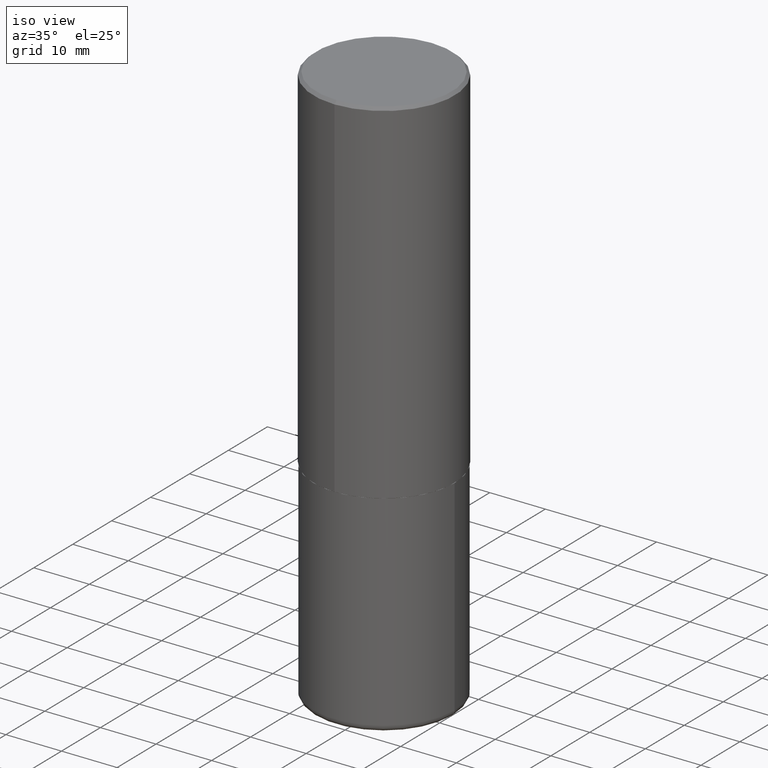
[diagram: clean part render]
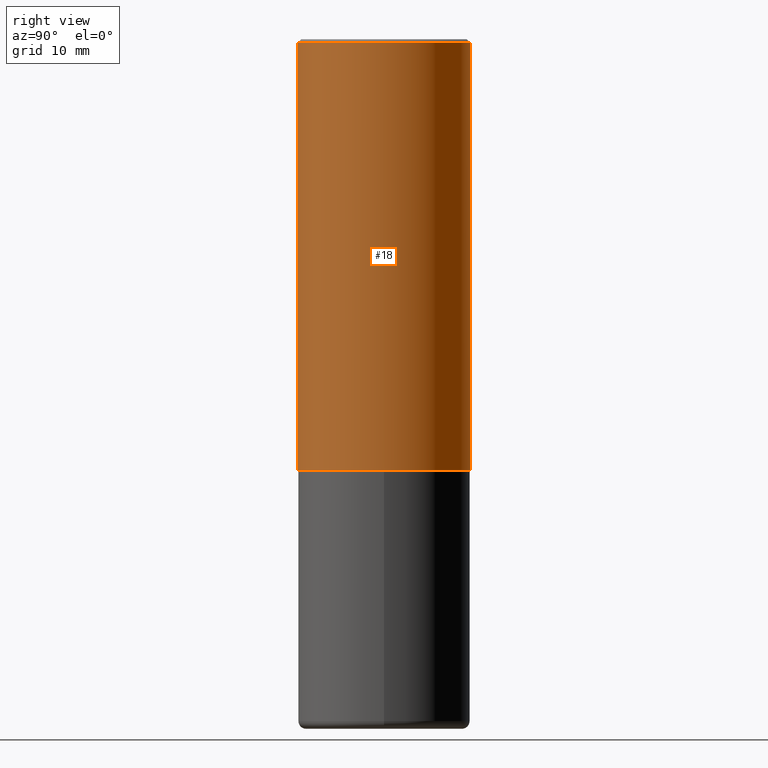
[diagram: tour spotlight — one face highlighted and labeled with its STEP entity id]
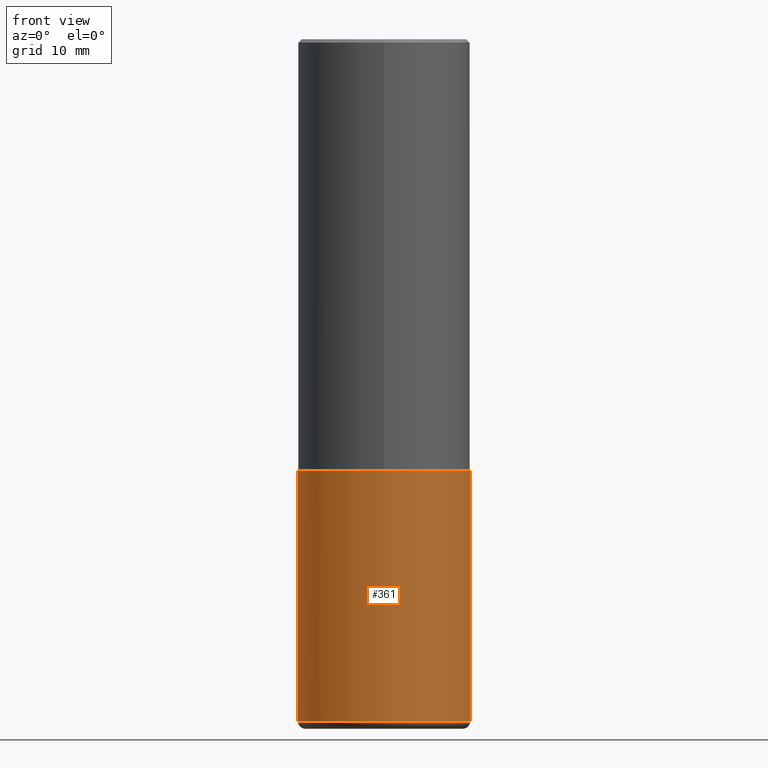
[diagram: tour spotlight — one face highlighted and labeled with its STEP entity id]
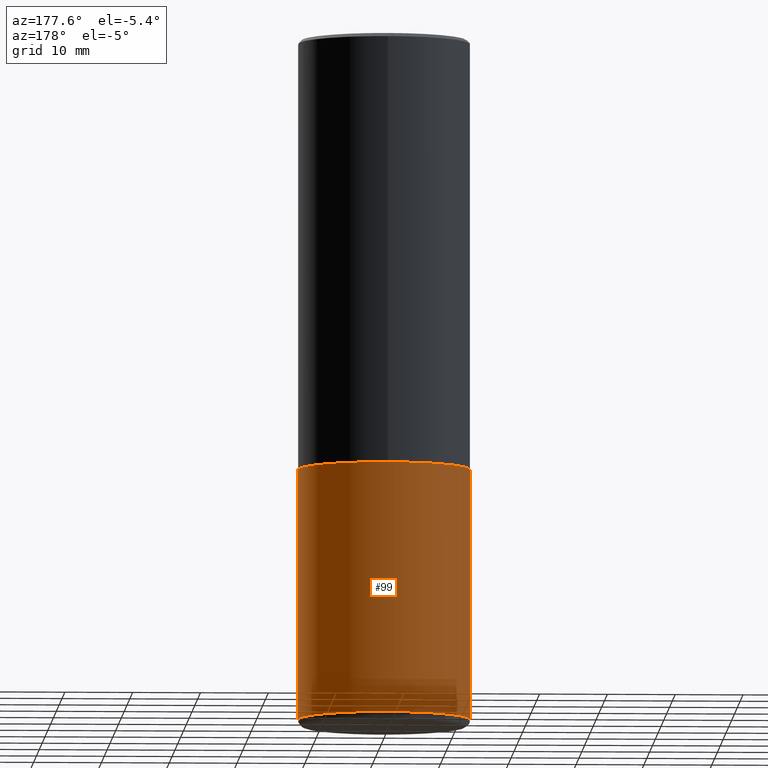
[diagram: tour spotlight — one face highlighted and labeled with its STEP entity id]
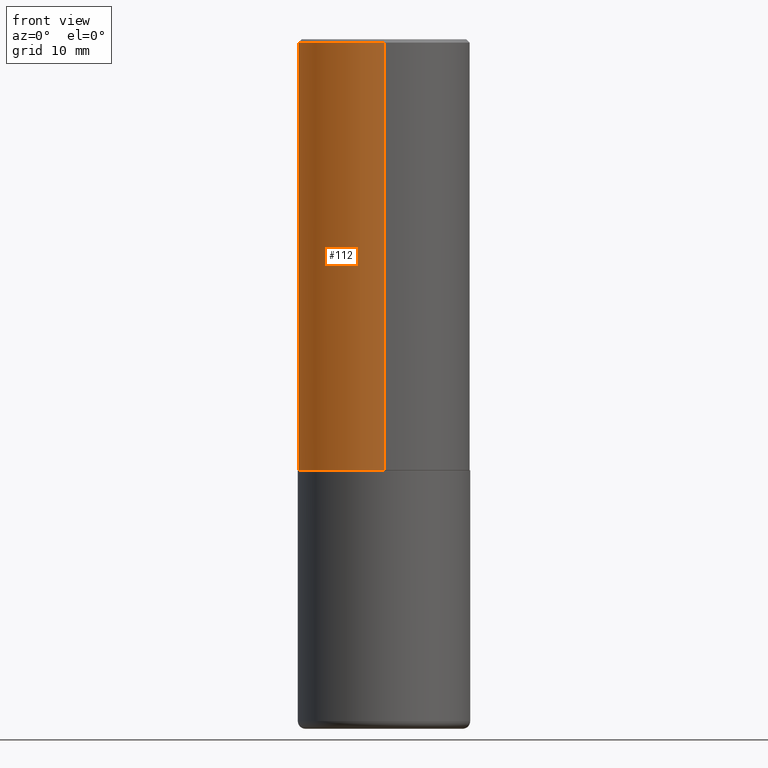
[diagram: tour spotlight — one face highlighted and labeled with its STEP entity id]
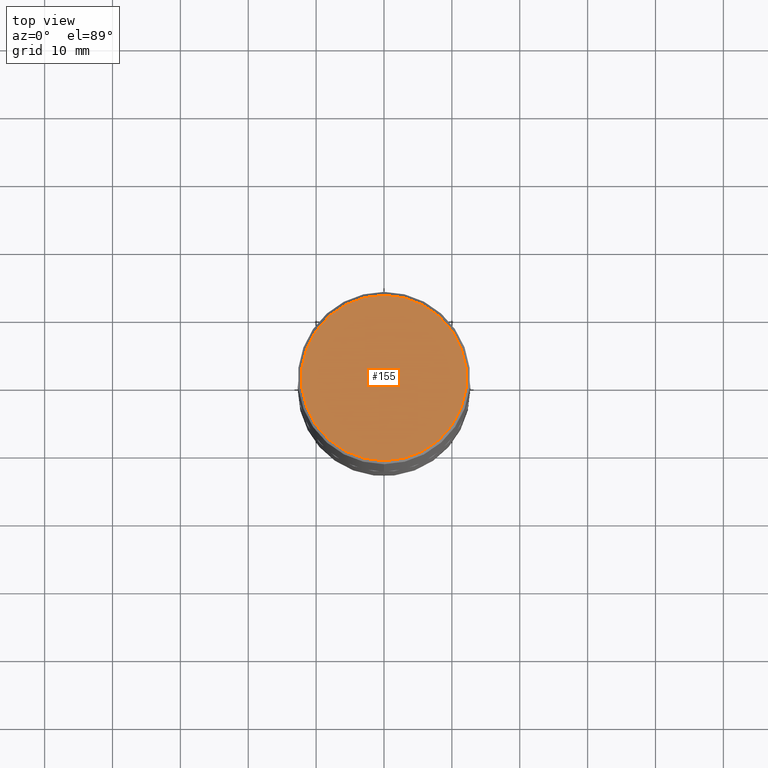
[diagram: tour spotlight — one face highlighted and labeled with its STEP entity id]
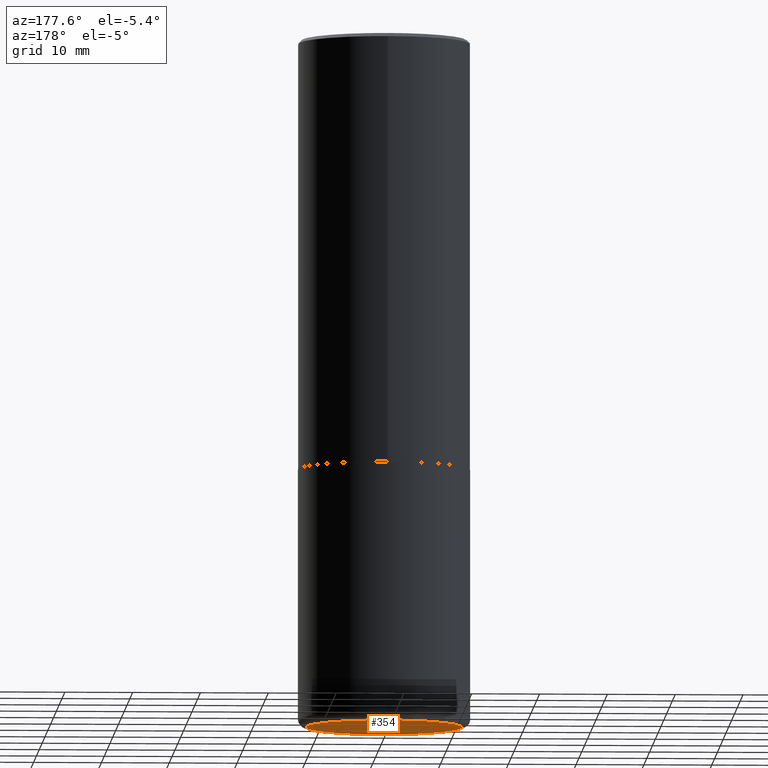
[diagram: tour spotlight — one face highlighted and labeled with its STEP entity id]
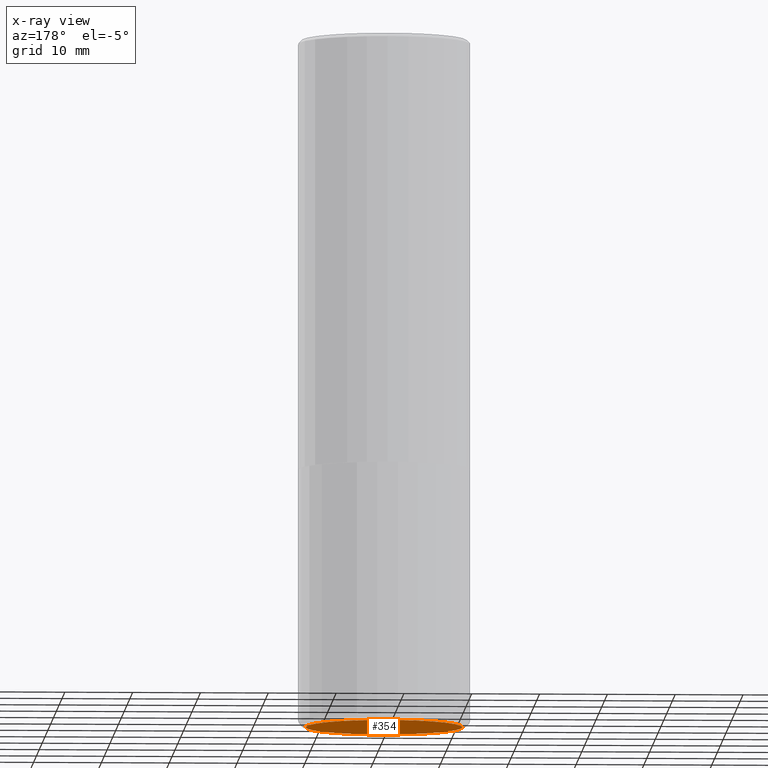
[diagram: x-ray of the same camera — body ghosted, this tour face saturated]
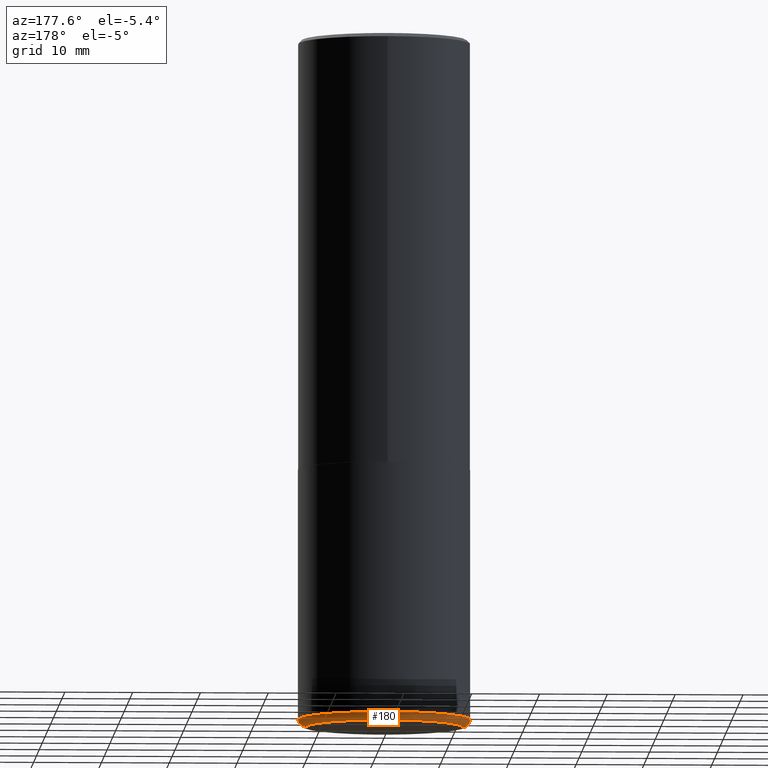
[diagram: tour spotlight — one face highlighted and labeled with its STEP entity id]
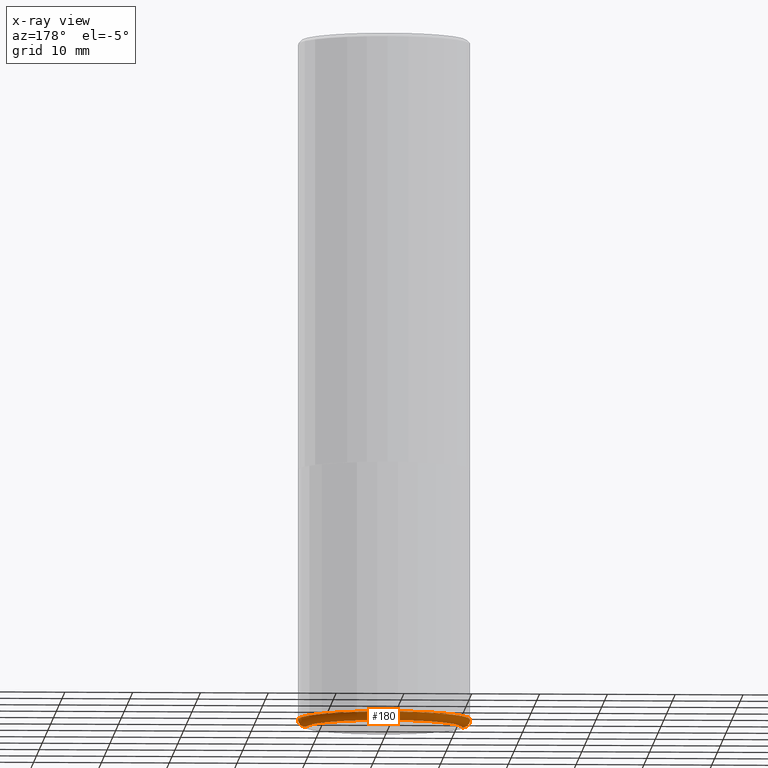
[diagram: x-ray of the same camera — body ghosted, this tour face saturated]
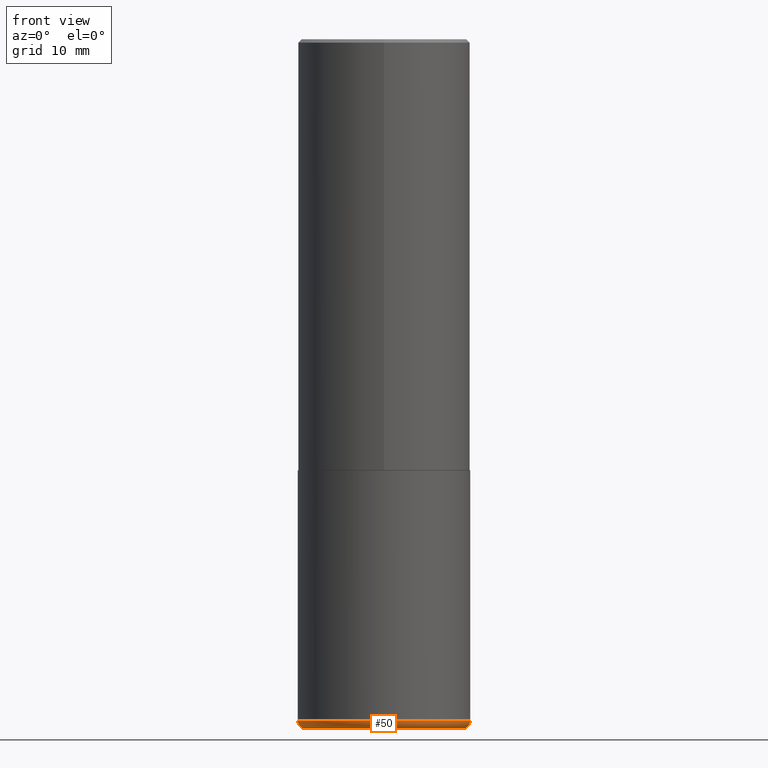
[diagram: tour spotlight — one face highlighted and labeled with its STEP entity id]
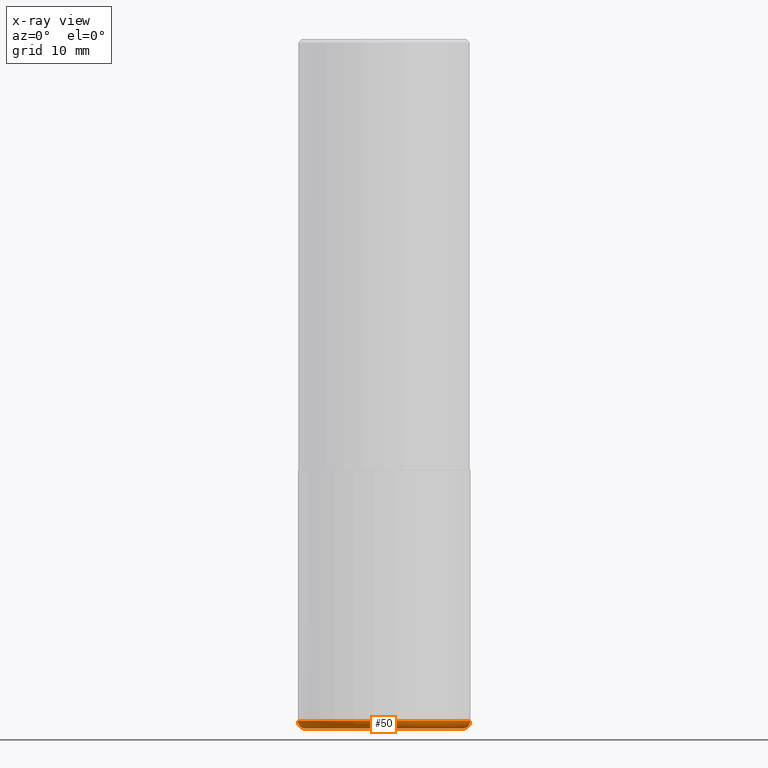
[diagram: x-ray of the same camera — body ghosted, this tour face saturated]
A machine part: a face-by-face anatomy tour. The part has 14 B-rep faces; the first image is the clean iso view, then the 8 largest visible faces are spotlighted one at a time (largest first), each with its STEP entity span.

Face 1 — right view, entity #18. In plain terms, the highlighted cylindrical surface (partial cylindrical patch) has radius 12.7 mm, axis along (-0, 0, 1).
Definition (entity closure, byte-faithful):
#11 = ORIENTED_EDGE ( 'NONE', *, *, #39, .F. ) ;
#18 = ADVANCED_FACE ( 'NONE', ( #242 ), #117, .T. ) ;
#24 = CARTESIAN_POINT ( 'NONE',  ( -3.491481338843073796E-15, -0.5000000000000089928, -2.498999999999998778 ) ) ;
#30 = CIRCLE ( 'NONE', #58, 0.5000000000000002220 ) ;
#36 = ORIENTED_EDGE ( 'NONE', *, *, #262, .T. ) ;
#38 = DIRECTION ( 'NONE',  ( -2.444465131706345255E-29, 3.492918657822378868E-15, 1.000000000000000000 ) ) ;
#39 = EDGE_CURVE ( 'NONE', #272, #231, #398, .T. ) ;
#40 = CARTESIAN_POINT ( 'NONE',  ( 0.000000000000000000, 0.000000000000000000, 0.000000000000000000 ) ) ;
#45 = DIRECTION ( 'NONE',  ( -2.444465131706345255E-29, 3.492918657822378473E-15, 1.000000000000000000 ) ) ;
#58 = AXIS2_PLACEMENT_3D ( 'NONE', #333, #45, #255 ) ;
#77 = DIRECTION ( 'NONE',  ( -6.982962677686265922E-15, -1.000000000000000000, 3.492918657822378473E-15 ) ) ;
#98 = DIRECTION ( 'NONE',  ( -6.982962677686265922E-15, -1.000000000000000000, 3.491643216902136408E-15 ) ) ;
#103 = CARTESIAN_POINT ( 'NONE',  ( -3.491481338843133750E-15, -0.5000000000000001110, 1.746459328911189631E-15 ) ) ;
#106 = ORIENTED_EDGE ( 'NONE', *, *, #235, .F. ) ;
#117 = CYLINDRICAL_SURFACE ( 'NONE', #214, 0.5000000000000001110 ) ;
#146 = CARTESIAN_POINT ( 'NONE',  ( 3.552713678800533273E-15, 0.4999999999999916178, -2.499000000000001886 ) ) ;
#150 = EDGE_CURVE ( 'NONE', #339, #223, #248, .T. ) ;
#152 = AXIS2_PLACEMENT_3D ( 'NONE', #289, #254, #98 ) ;
#182 = DIRECTION ( 'NONE',  ( -2.444465131706345255E-29, 3.492918657822378868E-15, 1.000000000000000000 ) ) ;
#191 = VECTOR ( 'NONE', #38, 39.37007874015748143 ) ;
#206 = CARTESIAN_POINT ( 'NONE',  ( 3.552713678800501718E-15, 0.5000000000000001110, -1.746459328911189631E-15 ) ) ;
#214 = AXIS2_PLACEMENT_3D ( 'NONE', #40, #219, #77 ) ;
#219 = DIRECTION ( 'NONE',  ( -2.444465131706345255E-29, 3.492918657822378473E-15, 1.000000000000000000 ) ) ;
#223 = VERTEX_POINT ( 'NONE', #250 ) ;
#227 = EDGE_LOOP ( 'NONE', ( #36, #228, #106, #11 ) ) ;
#228 = ORIENTED_EDGE ( 'NONE', *, *, #150, .T. ) ;
#231 = VERTEX_POINT ( 'NONE', #316 ) ;
#235 = EDGE_CURVE ( 'NONE', #231, #223, #239, .T. ) ;
#239 = CIRCLE ( 'NONE', #152, 0.5000000000000000000 ) ;
#242 = FACE_OUTER_BOUND ( 'NONE', #227, .T. ) ;
#248 = LINE ( 'NONE', #206, #401 ) ;
#250 = CARTESIAN_POINT ( 'NONE',  ( 3.491481338843133355E-15, 0.4999999999999999445, -0.02000000000000185310 ) ) ;
#254 = DIRECTION ( 'NONE',  ( -2.444465131706345255E-29, 3.492918657822378473E-15, 1.000000000000000000 ) ) ;
#255 = DIRECTION ( 'NONE',  ( -6.982962677686266711E-15, -1.000000000000000000, 3.278217592397114284E-15 ) ) ;
#262 = EDGE_CURVE ( 'NONE', #272, #339, #30, .T. ) ;
#272 = VERTEX_POINT ( 'NONE', #24 ) ;
#289 = CARTESIAN_POINT ( 'NONE',  ( 4.888930263412717169E-31, -6.985837315644793974E-17, -0.02000000000000010797 ) ) ;
#316 = CARTESIAN_POINT ( 'NONE',  ( -3.430248998885764992E-15, -0.5000000000000001110, -0.01999999999999835937 ) ) ;
#333 = CARTESIAN_POINT ( 'NONE',  ( 6.108718364134157248E-29, -8.728803725898125516E-15, -2.499000000000000110 ) ) ;
#339 = VERTEX_POINT ( 'NONE', #146 ) ;
#398 = LINE ( 'NONE', #103, #191 ) ;
#401 = VECTOR ( 'NONE', #182, 39.37007874015748143 ) ;

Face 2 — front view, entity #361. In plain terms, the highlighted cylindrical surface (partial cylindrical patch) has radius 12.7 mm, axis along (-0, 0, 1).
Definition (entity closure, byte-faithful):
#14 = EDGE_CURVE ( 'NONE', #211, #399, #175, .T. ) ;
#34 = EDGE_CURVE ( 'NONE', #266, #66, #329, .T. ) ;
#43 = CYLINDRICAL_SURFACE ( 'NONE', #415, 0.5000000000000000000 ) ;
#47 = FACE_OUTER_BOUND ( 'NONE', #179, .T. ) ;
#66 = VERTEX_POINT ( 'NONE', #283 ) ;
#70 = CARTESIAN_POINT ( 'NONE',  ( -0.5000000000000000000, -7.716042342315751891E-15, -2.500000000000000000 ) ) ;
#87 = DIRECTION ( 'NONE',  ( -2.445468806185136597E-29, 3.491481338843145583E-15, 1.000000000000000000 ) ) ;
#89 = EDGE_CURVE ( 'NONE', #211, #266, #246, .T. ) ;
#127 = CARTESIAN_POINT ( 'NONE',  ( 0.5000000000000000000, -1.730029003396777405E-14, -3.954999999999999627 ) ) ;
#130 = VECTOR ( 'NONE', #199, 39.37007874015748143 ) ;
#132 = CIRCLE ( 'NONE', #352, 0.5000000000000000000 ) ;
#140 = DIRECTION ( 'NONE',  ( 1.000000000000000000, -6.982962677686265133E-15, 0.000000000000000000 ) ) ;
#168 = DIRECTION ( 'NONE',  ( -2.445468806185136877E-29, 3.491481338843145188E-15, 1.000000000000000000 ) ) ;
#174 = CARTESIAN_POINT ( 'NONE',  ( 6.113672015462842613E-29, -8.728703347107864943E-15, -2.500000000000000000 ) ) ;
#175 = LINE ( 'NONE', #365, #130 ) ;
#179 = EDGE_LOOP ( 'NONE', ( #371, #253, #264, #305 ) ) ;
#199 = DIRECTION ( 'NONE',  ( -2.445468806185136877E-29, 3.491481338843145188E-15, 1.000000000000000000 ) ) ;
#207 = DIRECTION ( 'NONE',  ( 1.000000000000000000, -6.982962677686269077E-15, 0.000000000000000000 ) ) ;
#211 = VERTEX_POINT ( 'NONE', #417 ) ;
#213 = CARTESIAN_POINT ( 'NONE',  ( 9.671829128462214433E-29, -1.380880869512464070E-14, -3.954999999999999627 ) ) ;
#244 = DIRECTION ( 'NONE',  ( 1.000000000000000000, -6.982962677686266711E-15, 4.876176775795935793E-29 ) ) ;
#246 = CIRCLE ( 'NONE', #251, 0.5000000000000001110 ) ;
#251 = AXIS2_PLACEMENT_3D ( 'NONE', #213, #87, #140 ) ;
#253 = ORIENTED_EDGE ( 'NONE', *, *, #89, .T. ) ;
#264 = ORIENTED_EDGE ( 'NONE', *, *, #34, .T. ) ;
#266 = VERTEX_POINT ( 'NONE', #127 ) ;
#271 = CARTESIAN_POINT ( 'NONE',  ( 0.000000000000000000, 0.000000000000000000, 0.000000000000000000 ) ) ;
#283 = CARTESIAN_POINT ( 'NONE',  ( 0.5000000000000000000, -1.222018468595099830E-14, -2.500000000000000000 ) ) ;
#302 = DIRECTION ( 'NONE',  ( -2.445468806185136597E-29, 3.491481338843145583E-15, 1.000000000000000000 ) ) ;
#304 = CARTESIAN_POINT ( 'NONE',  ( 0.5000000000000000000, -3.491481338843133355E-15, 2.438088387897967896E-29 ) ) ;
#305 = ORIENTED_EDGE ( 'NONE', *, *, #334, .F. ) ;
#307 = DIRECTION ( 'NONE',  ( -2.445468806185136597E-29, 3.491481338843145583E-15, 1.000000000000000000 ) ) ;
#329 = LINE ( 'NONE', #304, #368 ) ;
#334 = EDGE_CURVE ( 'NONE', #399, #66, #132, .T. ) ;
#352 = AXIS2_PLACEMENT_3D ( 'NONE', #174, #307, #207 ) ;
#361 = ADVANCED_FACE ( 'NONE', ( #47 ), #43, .T. ) ;
#365 = CARTESIAN_POINT ( 'NONE',  ( -0.5000000000000000000, 3.552713678800500929E-15, -2.459467545127452891E-29 ) ) ;
#368 = VECTOR ( 'NONE', #168, 39.37007874015748143 ) ;
#371 = ORIENTED_EDGE ( 'NONE', *, *, #14, .F. ) ;
#399 = VERTEX_POINT ( 'NONE', #70 ) ;
#415 = AXIS2_PLACEMENT_3D ( 'NONE', #271, #302, #244 ) ;
#417 = CARTESIAN_POINT ( 'NONE',  ( -0.5000000000000000000, -1.025609501632413977E-14, -3.954999999999999627 ) ) ;

Face 3 — auxiliary view, entity #99. In plain terms, the highlighted cylindrical surface (partial cylindrical patch) has radius 12.7 mm, axis along (-0, 0, 1).
Definition (entity closure, byte-faithful):
#14 = EDGE_CURVE ( 'NONE', #211, #399, #175, .T. ) ;
#20 = DIRECTION ( 'NONE',  ( 1.000000000000000000, -6.982962677686266711E-15, 4.876176775795935793E-29 ) ) ;
#34 = EDGE_CURVE ( 'NONE', #266, #66, #329, .T. ) ;
#59 = FACE_OUTER_BOUND ( 'NONE', #413, .T. ) ;
#66 = VERTEX_POINT ( 'NONE', #283 ) ;
#70 = CARTESIAN_POINT ( 'NONE',  ( -0.5000000000000000000, -7.716042342315751891E-15, -2.500000000000000000 ) ) ;
#83 = ORIENTED_EDGE ( 'NONE', *, *, #184, .T. ) ;
#86 = AXIS2_PLACEMENT_3D ( 'NONE', #310, #281, #20 ) ;
#99 = ADVANCED_FACE ( 'NONE', ( #59 ), #341, .T. ) ;
#127 = CARTESIAN_POINT ( 'NONE',  ( 0.5000000000000000000, -1.730029003396777405E-14, -3.954999999999999627 ) ) ;
#130 = VECTOR ( 'NONE', #199, 39.37007874015748143 ) ;
#134 = ORIENTED_EDGE ( 'NONE', *, *, #14, .T. ) ;
#153 = CARTESIAN_POINT ( 'NONE',  ( 9.671829128462214433E-29, -1.380880869512464070E-14, -3.954999999999999627 ) ) ;
#168 = DIRECTION ( 'NONE',  ( -2.445468806185136877E-29, 3.491481338843145188E-15, 1.000000000000000000 ) ) ;
#169 = DIRECTION ( 'NONE',  ( 1.000000000000000000, -6.982962677686269077E-15, 0.000000000000000000 ) ) ;
#170 = CIRCLE ( 'NONE', #297, 0.5000000000000000000 ) ;
#175 = LINE ( 'NONE', #365, #130 ) ;
#184 = EDGE_CURVE ( 'NONE', #266, #211, #260, .T. ) ;
#199 = DIRECTION ( 'NONE',  ( -2.445468806185136877E-29, 3.491481338843145188E-15, 1.000000000000000000 ) ) ;
#211 = VERTEX_POINT ( 'NONE', #417 ) ;
#222 = DIRECTION ( 'NONE',  ( 1.000000000000000000, -6.982962677686265133E-15, 0.000000000000000000 ) ) ;
#226 = CARTESIAN_POINT ( 'NONE',  ( 6.113672015462842613E-29, -8.728703347107864943E-15, -2.500000000000000000 ) ) ;
#258 = DIRECTION ( 'NONE',  ( -2.445468806185136597E-29, 3.491481338843145583E-15, 1.000000000000000000 ) ) ;
#260 = CIRCLE ( 'NONE', #407, 0.5000000000000001110 ) ;
#266 = VERTEX_POINT ( 'NONE', #127 ) ;
#275 = EDGE_CURVE ( 'NONE', #66, #399, #170, .T. ) ;
#280 = ORIENTED_EDGE ( 'NONE', *, *, #275, .F. ) ;
#281 = DIRECTION ( 'NONE',  ( -2.445468806185136597E-29, 3.491481338843145583E-15, 1.000000000000000000 ) ) ;
#283 = CARTESIAN_POINT ( 'NONE',  ( 0.5000000000000000000, -1.222018468595099830E-14, -2.500000000000000000 ) ) ;
#297 = AXIS2_PLACEMENT_3D ( 'NONE', #226, #396, #169 ) ;
#304 = CARTESIAN_POINT ( 'NONE',  ( 0.5000000000000000000, -3.491481338843133355E-15, 2.438088387897967896E-29 ) ) ;
#309 = ORIENTED_EDGE ( 'NONE', *, *, #34, .F. ) ;
#310 = CARTESIAN_POINT ( 'NONE',  ( 0.000000000000000000, 0.000000000000000000, 0.000000000000000000 ) ) ;
#329 = LINE ( 'NONE', #304, #368 ) ;
#341 = CYLINDRICAL_SURFACE ( 'NONE', #86, 0.5000000000000000000 ) ;
#365 = CARTESIAN_POINT ( 'NONE',  ( -0.5000000000000000000, 3.552713678800500929E-15, -2.459467545127452891E-29 ) ) ;
#368 = VECTOR ( 'NONE', #168, 39.37007874015748143 ) ;
#396 = DIRECTION ( 'NONE',  ( -2.445468806185136597E-29, 3.491481338843145583E-15, 1.000000000000000000 ) ) ;
#399 = VERTEX_POINT ( 'NONE', #70 ) ;
#407 = AXIS2_PLACEMENT_3D ( 'NONE', #153, #258, #222 ) ;
#413 = EDGE_LOOP ( 'NONE', ( #83, #134, #280, #309 ) ) ;
#417 = CARTESIAN_POINT ( 'NONE',  ( -0.5000000000000000000, -1.025609501632413977E-14, -3.954999999999999627 ) ) ;

Face 4 — front view, entity #112. In plain terms, the highlighted cylindrical surface (partial cylindrical patch) has radius 12.7 mm, axis along (-0, 0, 1).
Definition (entity closure, byte-faithful):
#3 = AXIS2_PLACEMENT_3D ( 'NONE', #379, #186, #357 ) ;
#6 = CARTESIAN_POINT ( 'NONE',  ( 0.000000000000000000, 0.000000000000000000, 0.000000000000000000 ) ) ;
#9 = EDGE_CURVE ( 'NONE', #223, #231, #284, .T. ) ;
#19 = ORIENTED_EDGE ( 'NONE', *, *, #150, .F. ) ;
#24 = CARTESIAN_POINT ( 'NONE',  ( -3.491481338843073796E-15, -0.5000000000000089928, -2.498999999999998778 ) ) ;
#35 = CIRCLE ( 'NONE', #3, 0.5000000000000002220 ) ;
#38 = DIRECTION ( 'NONE',  ( -2.444465131706345255E-29, 3.492918657822378868E-15, 1.000000000000000000 ) ) ;
#39 = EDGE_CURVE ( 'NONE', #272, #231, #398, .T. ) ;
#103 = CARTESIAN_POINT ( 'NONE',  ( -3.491481338843133750E-15, -0.5000000000000001110, 1.746459328911189631E-15 ) ) ;
#112 = ADVANCED_FACE ( 'NONE', ( #217 ), #115, .T. ) ;
#115 = CYLINDRICAL_SURFACE ( 'NONE', #306, 0.5000000000000001110 ) ;
#146 = CARTESIAN_POINT ( 'NONE',  ( 3.552713678800533273E-15, 0.4999999999999916178, -2.499000000000001886 ) ) ;
#150 = EDGE_CURVE ( 'NONE', #339, #223, #248, .T. ) ;
#158 = DIRECTION ( 'NONE',  ( -6.982962677686265922E-15, -1.000000000000000000, 3.492918657822378473E-15 ) ) ;
#162 = EDGE_LOOP ( 'NONE', ( #19, #380, #216, #405 ) ) ;
#172 = DIRECTION ( 'NONE',  ( -6.982962677686265922E-15, -1.000000000000000000, 3.491643216902136408E-15 ) ) ;
#182 = DIRECTION ( 'NONE',  ( -2.444465131706345255E-29, 3.492918657822378868E-15, 1.000000000000000000 ) ) ;
#186 = DIRECTION ( 'NONE',  ( -2.444465131706345255E-29, 3.492918657822378473E-15, 1.000000000000000000 ) ) ;
#191 = VECTOR ( 'NONE', #38, 39.37007874015748143 ) ;
#206 = CARTESIAN_POINT ( 'NONE',  ( 3.552713678800501718E-15, 0.5000000000000001110, -1.746459328911189631E-15 ) ) ;
#216 = ORIENTED_EDGE ( 'NONE', *, *, #39, .T. ) ;
#217 = FACE_OUTER_BOUND ( 'NONE', #162, .T. ) ;
#223 = VERTEX_POINT ( 'NONE', #250 ) ;
#231 = VERTEX_POINT ( 'NONE', #316 ) ;
#248 = LINE ( 'NONE', #206, #401 ) ;
#250 = CARTESIAN_POINT ( 'NONE',  ( 3.491481338843133355E-15, 0.4999999999999999445, -0.02000000000000185310 ) ) ;
#267 = EDGE_CURVE ( 'NONE', #339, #272, #35, .T. ) ;
#272 = VERTEX_POINT ( 'NONE', #24 ) ;
#276 = CARTESIAN_POINT ( 'NONE',  ( 4.888930263412717169E-31, -6.985837315644793974E-17, -0.02000000000000010797 ) ) ;
#284 = CIRCLE ( 'NONE', #406, 0.5000000000000000000 ) ;
#296 = DIRECTION ( 'NONE',  ( -2.444465131706345255E-29, 3.492918657822378473E-15, 1.000000000000000000 ) ) ;
#306 = AXIS2_PLACEMENT_3D ( 'NONE', #6, #296, #158 ) ;
#316 = CARTESIAN_POINT ( 'NONE',  ( -3.430248998885764992E-15, -0.5000000000000001110, -0.01999999999999835937 ) ) ;
#339 = VERTEX_POINT ( 'NONE', #146 ) ;
#357 = DIRECTION ( 'NONE',  ( -6.982962677686266711E-15, -1.000000000000000000, 3.278217592397114284E-15 ) ) ;
#379 = CARTESIAN_POINT ( 'NONE',  ( 6.108718364134157248E-29, -8.728803725898125516E-15, -2.499000000000000110 ) ) ;
#380 = ORIENTED_EDGE ( 'NONE', *, *, #267, .T. ) ;
#398 = LINE ( 'NONE', #103, #191 ) ;
#401 = VECTOR ( 'NONE', #182, 39.37007874015748143 ) ;
#405 = ORIENTED_EDGE ( 'NONE', *, *, #9, .F. ) ;
#406 = AXIS2_PLACEMENT_3D ( 'NONE', #276, #410, #172 ) ;
#410 = DIRECTION ( 'NONE',  ( -2.444465131706345255E-29, 3.492918657822378473E-15, 1.000000000000000000 ) ) ;

Face 5 — top view, entity #155. In plain terms, the highlighted planar face has unit normal (0, -0, -1).
Definition (entity closure, byte-faithful):
#7 = AXIS2_PLACEMENT_3D ( 'NONE', #351, #356, #61 ) ;
#12 = VERTEX_POINT ( 'NONE', #414 ) ;
#27 = VERTEX_POINT ( 'NONE', #46 ) ;
#42 = AXIS2_PLACEMENT_3D ( 'NONE', #312, #49, #278 ) ;
#46 = CARTESIAN_POINT ( 'NONE',  ( -3.361644018908049661E-15, -0.4799999999999998157, 1.801077731077684661E-15 ) ) ;
#49 = DIRECTION ( 'NONE',  ( 2.444465131706344694E-29, -3.492918657822378868E-15, -1.000000000000000000 ) ) ;
#61 = DIRECTION ( 'NONE',  ( -6.982962677686265922E-15, -1.000000000000000000, 3.492918657822378473E-15 ) ) ;
#82 = FACE_OUTER_BOUND ( 'NONE', #208, .T. ) ;
#100 = DIRECTION ( 'NONE',  ( -6.982962677686265922E-15, -1.000000000000000000, 3.492918657822378473E-15 ) ) ;
#121 = EDGE_CURVE ( 'NONE', #27, #12, #358, .T. ) ;
#155 = ADVANCED_FACE ( 'NONE', ( #82 ), #209, .F. ) ;
#178 = AXIS2_PLACEMENT_3D ( 'NONE', #293, #383, #100 ) ;
#203 = CIRCLE ( 'NONE', #178, 0.4799999999999998157 ) ;
#208 = EDGE_LOOP ( 'NONE', ( #332, #363 ) ) ;
#209 = PLANE ( 'NONE',  #42 ) ;
#212 = EDGE_CURVE ( 'NONE', #12, #27, #203, .T. ) ;
#278 = DIRECTION ( 'NONE',  ( 6.982962677686265922E-15, 1.000000000000000000, -3.492918657822378868E-15 ) ) ;
#293 = CARTESIAN_POINT ( 'NONE',  ( -3.042791369841808055E-45, 4.347872509910743958E-31, 1.244767753229437217E-16 ) ) ;
#312 = CARTESIAN_POINT ( 'NONE',  ( 3.351822085289406364E-15, 0.4799999999999998157, -1.614362568093269153E-15 ) ) ;
#332 = ORIENTED_EDGE ( 'NONE', *, *, #212, .T. ) ;
#351 = CARTESIAN_POINT ( 'NONE',  ( -3.042791369841808055E-45, 4.347872509910743958E-31, 1.244767753229437217E-16 ) ) ;
#356 = DIRECTION ( 'NONE',  ( -2.444465131706345255E-29, 3.492918657822378473E-15, 1.000000000000000000 ) ) ;
#358 = CIRCLE ( 'NONE', #7, 0.4799999999999998157 ) ;
#363 = ORIENTED_EDGE ( 'NONE', *, *, #121, .T. ) ;
#383 = DIRECTION ( 'NONE',  ( -2.444465131706345255E-29, 3.492918657822378473E-15, 1.000000000000000000 ) ) ;
#414 = CARTESIAN_POINT ( 'NONE',  ( 3.421651712066270057E-15, 0.4799999999999998157, -1.552124180431797316E-15 ) ) ;

Face 6 — auxiliary view, entity #354. An x-ray twin of the same camera follows (body ghosted, this face saturated) — the face is partly hidden behind the body. In plain terms, the highlighted planar face has unit normal (0, -0, -1).
Definition (entity closure, byte-faithful):
#78 = PLANE ( 'NONE',  #308 ) ;
#90 = VERTEX_POINT ( 'NONE', #344 ) ;
#97 = DIRECTION ( 'NONE',  ( -2.445468806185136597E-29, 3.491481338843145583E-15, 1.000000000000000000 ) ) ;
#124 = EDGE_CURVE ( 'NONE', #236, #90, #177, .T. ) ;
#135 = CIRCLE ( 'NONE', #285, 0.4550000000000000155 ) ;
#137 = CARTESIAN_POINT ( 'NONE',  ( 1.313596622797037674E-28, -9.162676135743107690E-15, -4.000000000000000000 ) ) ;
#154 = CARTESIAN_POINT ( 'NONE',  ( 9.781875224740545266E-29, -1.396592535537258075E-14, -3.999999999999999556 ) ) ;
#156 = ORIENTED_EDGE ( 'NONE', *, *, #163, .F. ) ;
#163 = EDGE_CURVE ( 'NONE', #90, #236, #135, .T. ) ;
#177 = CIRCLE ( 'NONE', #314, 0.4550000000000000155 ) ;
#236 = VERTEX_POINT ( 'NONE', #392 ) ;
#285 = AXIS2_PLACEMENT_3D ( 'NONE', #411, #373, #340 ) ;
#287 = DIRECTION ( 'NONE',  ( 1.000000000000000000, -6.982962677686265922E-15, 0.000000000000000000 ) ) ;
#295 = EDGE_LOOP ( 'NONE', ( #303, #156 ) ) ;
#303 = ORIENTED_EDGE ( 'NONE', *, *, #124, .F. ) ;
#308 = AXIS2_PLACEMENT_3D ( 'NONE', #137, #335, #404 ) ;
#314 = AXIS2_PLACEMENT_3D ( 'NONE', #154, #97, #287 ) ;
#335 = DIRECTION ( 'NONE',  ( 2.438088387897960049E-29, -3.491481338843145188E-15, -1.000000000000000000 ) ) ;
#340 = DIRECTION ( 'NONE',  ( 1.000000000000000000, -6.982962677686265922E-15, 0.000000000000000000 ) ) ;
#344 = CARTESIAN_POINT ( 'NONE',  ( -0.4550000000000000155, -1.049452546199413209E-14, -3.999999999999999556 ) ) ;
#354 = ADVANCED_FACE ( 'NONE', ( #412 ), #78, .T. ) ;
#373 = DIRECTION ( 'NONE',  ( -2.445468806185136597E-29, 3.491481338843145583E-15, 1.000000000000000000 ) ) ;
#392 = CARTESIAN_POINT ( 'NONE',  ( 0.4550000000000000155, -1.714317337371983084E-14, -3.999999999999999556 ) ) ;
#404 = DIRECTION ( 'NONE',  ( -1.000000000000000000, 6.982962677686265922E-15, -4.876176775795935793E-29 ) ) ;
#411 = CARTESIAN_POINT ( 'NONE',  ( 9.781875224740545266E-29, -1.396592535537258075E-14, -3.999999999999999556 ) ) ;
#412 = FACE_OUTER_BOUND ( 'NONE', #295, .T. ) ;

Face 7 — auxiliary view, entity #180. An x-ray twin of the same camera follows (body ghosted, this face saturated) — the face is partly hidden behind the body. In plain terms, the highlighted toroidal blend (fillet) surface has major radius 11.557 mm and minor (blend) radius 1.143 mm.
Definition (entity closure, byte-faithful):
#17 = AXIS2_PLACEMENT_3D ( 'NONE', #418, #123, #389 ) ;
#31 = DIRECTION ( 'NONE',  ( -2.445468806185136597E-29, 3.491481338843145583E-15, 1.000000000000000000 ) ) ;
#41 = DIRECTION ( 'NONE',  ( -6.982962677686266711E-15, -1.000000000000000000, 3.491481338843145583E-15 ) ) ;
#44 = ORIENTED_EDGE ( 'NONE', *, *, #124, .T. ) ;
#57 = FACE_OUTER_BOUND ( 'NONE', #311, .T. ) ;
#67 = DIRECTION ( 'NONE',  ( 1.000000000000000000, -6.982962677686246200E-15, 0.000000000000000000 ) ) ;
#90 = VERTEX_POINT ( 'NONE', #344 ) ;
#96 = CIRCLE ( 'NONE', #215, 0.04499999999999985956 ) ;
#97 = DIRECTION ( 'NONE',  ( -2.445468806185136597E-29, 3.491481338843145583E-15, 1.000000000000000000 ) ) ;
#107 = CARTESIAN_POINT ( 'NONE',  ( 0.4550000000000000155, -1.698605671347189079E-14, -3.954999999999999627 ) ) ;
#120 = AXIS2_PLACEMENT_3D ( 'NONE', #183, #31, #388 ) ;
#123 = DIRECTION ( 'NONE',  ( 7.105427357601001859E-15, 1.000000000000000000, -3.491481338843145583E-15 ) ) ;
#124 = EDGE_CURVE ( 'NONE', #236, #90, #177, .T. ) ;
#127 = CARTESIAN_POINT ( 'NONE',  ( 0.5000000000000000000, -1.730029003396777405E-14, -3.954999999999999627 ) ) ;
#133 = EDGE_CURVE ( 'NONE', #90, #211, #395, .T. ) ;
#144 = ORIENTED_EDGE ( 'NONE', *, *, #184, .F. ) ;
#153 = CARTESIAN_POINT ( 'NONE',  ( 9.671829128462214433E-29, -1.380880869512464070E-14, -3.954999999999999627 ) ) ;
#154 = CARTESIAN_POINT ( 'NONE',  ( 9.781875224740545266E-29, -1.396592535537258075E-14, -3.999999999999999556 ) ) ;
#177 = CIRCLE ( 'NONE', #314, 0.4550000000000000155 ) ;
#180 = ADVANCED_FACE ( 'NONE', ( #57 ), #360, .T. ) ;
#183 = CARTESIAN_POINT ( 'NONE',  ( 9.671829128462214433E-29, -1.380880869512464070E-14, -3.954999999999999627 ) ) ;
#184 = EDGE_CURVE ( 'NONE', #266, #211, #260, .T. ) ;
#197 = ORIENTED_EDGE ( 'NONE', *, *, #243, .F. ) ;
#211 = VERTEX_POINT ( 'NONE', #417 ) ;
#215 = AXIS2_PLACEMENT_3D ( 'NONE', #107, #41, #67 ) ;
#222 = DIRECTION ( 'NONE',  ( 1.000000000000000000, -6.982962677686265133E-15, 0.000000000000000000 ) ) ;
#236 = VERTEX_POINT ( 'NONE', #392 ) ;
#243 = EDGE_CURVE ( 'NONE', #236, #266, #96, .T. ) ;
#258 = DIRECTION ( 'NONE',  ( -2.445468806185136597E-29, 3.491481338843145583E-15, 1.000000000000000000 ) ) ;
#260 = CIRCLE ( 'NONE', #407, 0.5000000000000001110 ) ;
#266 = VERTEX_POINT ( 'NONE', #127 ) ;
#287 = DIRECTION ( 'NONE',  ( 1.000000000000000000, -6.982962677686265922E-15, 0.000000000000000000 ) ) ;
#311 = EDGE_LOOP ( 'NONE', ( #44, #343, #144, #197 ) ) ;
#314 = AXIS2_PLACEMENT_3D ( 'NONE', #154, #97, #287 ) ;
#343 = ORIENTED_EDGE ( 'NONE', *, *, #133, .T. ) ;
#344 = CARTESIAN_POINT ( 'NONE',  ( -0.4550000000000000155, -1.049452546199413209E-14, -3.999999999999999556 ) ) ;
#360 = TOROIDAL_SURFACE ( 'NONE', #120, 0.4550000000000000155, 0.04499999999999985956 ) ;
#388 = DIRECTION ( 'NONE',  ( 1.000000000000000000, -6.982962677686269077E-15, 4.883557194083114022E-29 ) ) ;
#389 = DIRECTION ( 'NONE',  ( -1.000000000000000000, 7.105427357601012903E-15, 0.000000000000000000 ) ) ;
#392 = CARTESIAN_POINT ( 'NONE',  ( 0.4550000000000000155, -1.714317337371983084E-14, -3.999999999999999556 ) ) ;
#395 = CIRCLE ( 'NONE', #17, 0.04499999999999985956 ) ;
#407 = AXIS2_PLACEMENT_3D ( 'NONE', #153, #258, #222 ) ;
#417 = CARTESIAN_POINT ( 'NONE',  ( -0.5000000000000000000, -1.025609501632413977E-14, -3.954999999999999627 ) ) ;
#418 = CARTESIAN_POINT ( 'NONE',  ( -0.4550000000000000155, -1.057583924741618435E-14, -3.954999999999999627 ) ) ;

Face 8 — front view, entity #50. An x-ray twin of the same camera follows (body ghosted, this face saturated) — the face is partly hidden behind the body. In plain terms, the highlighted toroidal blend (fillet) surface has major radius 11.557 mm and minor (blend) radius 1.143 mm.
Definition (entity closure, byte-faithful):
#16 = ORIENTED_EDGE ( 'NONE', *, *, #89, .F. ) ;
#17 = AXIS2_PLACEMENT_3D ( 'NONE', #418, #123, #389 ) ;
#41 = DIRECTION ( 'NONE',  ( -6.982962677686266711E-15, -1.000000000000000000, 3.491481338843145583E-15 ) ) ;
#50 = ADVANCED_FACE ( 'NONE', ( #229 ), #394, .T. ) ;
#67 = DIRECTION ( 'NONE',  ( 1.000000000000000000, -6.982962677686246200E-15, 0.000000000000000000 ) ) ;
#72 = DIRECTION ( 'NONE',  ( -2.445468806185136597E-29, 3.491481338843145583E-15, 1.000000000000000000 ) ) ;
#87 = DIRECTION ( 'NONE',  ( -2.445468806185136597E-29, 3.491481338843145583E-15, 1.000000000000000000 ) ) ;
#89 = EDGE_CURVE ( 'NONE', #211, #266, #246, .T. ) ;
#90 = VERTEX_POINT ( 'NONE', #344 ) ;
#96 = CIRCLE ( 'NONE', #215, 0.04499999999999985956 ) ;
#107 = CARTESIAN_POINT ( 'NONE',  ( 0.4550000000000000155, -1.698605671347189079E-14, -3.954999999999999627 ) ) ;
#110 = CARTESIAN_POINT ( 'NONE',  ( 9.671829128462214433E-29, -1.380880869512464070E-14, -3.954999999999999627 ) ) ;
#123 = DIRECTION ( 'NONE',  ( 7.105427357601001859E-15, 1.000000000000000000, -3.491481338843145583E-15 ) ) ;
#127 = CARTESIAN_POINT ( 'NONE',  ( 0.5000000000000000000, -1.730029003396777405E-14, -3.954999999999999627 ) ) ;
#133 = EDGE_CURVE ( 'NONE', #90, #211, #395, .T. ) ;
#135 = CIRCLE ( 'NONE', #285, 0.4550000000000000155 ) ;
#140 = DIRECTION ( 'NONE',  ( 1.000000000000000000, -6.982962677686265133E-15, 0.000000000000000000 ) ) ;
#163 = EDGE_CURVE ( 'NONE', #90, #236, #135, .T. ) ;
#167 = ORIENTED_EDGE ( 'NONE', *, *, #243, .T. ) ;
#200 = DIRECTION ( 'NONE',  ( 1.000000000000000000, -6.982962677686269077E-15, 4.883557194083114022E-29 ) ) ;
#202 = AXIS2_PLACEMENT_3D ( 'NONE', #110, #72, #200 ) ;
#211 = VERTEX_POINT ( 'NONE', #417 ) ;
#213 = CARTESIAN_POINT ( 'NONE',  ( 9.671829128462214433E-29, -1.380880869512464070E-14, -3.954999999999999627 ) ) ;
#215 = AXIS2_PLACEMENT_3D ( 'NONE', #107, #41, #67 ) ;
#229 = FACE_OUTER_BOUND ( 'NONE', #349, .T. ) ;
#236 = VERTEX_POINT ( 'NONE', #392 ) ;
#243 = EDGE_CURVE ( 'NONE', #236, #266, #96, .T. ) ;
#246 = CIRCLE ( 'NONE', #251, 0.5000000000000001110 ) ;
#251 = AXIS2_PLACEMENT_3D ( 'NONE', #213, #87, #140 ) ;
#266 = VERTEX_POINT ( 'NONE', #127 ) ;
#285 = AXIS2_PLACEMENT_3D ( 'NONE', #411, #373, #340 ) ;
#298 = ORIENTED_EDGE ( 'NONE', *, *, #133, .F. ) ;
#340 = DIRECTION ( 'NONE',  ( 1.000000000000000000, -6.982962677686265922E-15, 0.000000000000000000 ) ) ;
#344 = CARTESIAN_POINT ( 'NONE',  ( -0.4550000000000000155, -1.049452546199413209E-14, -3.999999999999999556 ) ) ;
#349 = EDGE_LOOP ( 'NONE', ( #298, #372, #167, #16 ) ) ;
#372 = ORIENTED_EDGE ( 'NONE', *, *, #163, .T. ) ;
#373 = DIRECTION ( 'NONE',  ( -2.445468806185136597E-29, 3.491481338843145583E-15, 1.000000000000000000 ) ) ;
#389 = DIRECTION ( 'NONE',  ( -1.000000000000000000, 7.105427357601012903E-15, 0.000000000000000000 ) ) ;
#392 = CARTESIAN_POINT ( 'NONE',  ( 0.4550000000000000155, -1.714317337371983084E-14, -3.999999999999999556 ) ) ;
#394 = TOROIDAL_SURFACE ( 'NONE', #202, 0.4550000000000000155, 0.04499999999999985956 ) ;
#395 = CIRCLE ( 'NONE', #17, 0.04499999999999985956 ) ;
#411 = CARTESIAN_POINT ( 'NONE',  ( 9.781875224740545266E-29, -1.396592535537258075E-14, -3.999999999999999556 ) ) ;
#417 = CARTESIAN_POINT ( 'NONE',  ( -0.5000000000000000000, -1.025609501632413977E-14, -3.954999999999999627 ) ) ;
#418 = CARTESIAN_POINT ( 'NONE',  ( -0.4550000000000000155, -1.057583924741618435E-14, -3.954999999999999627 ) ) ;